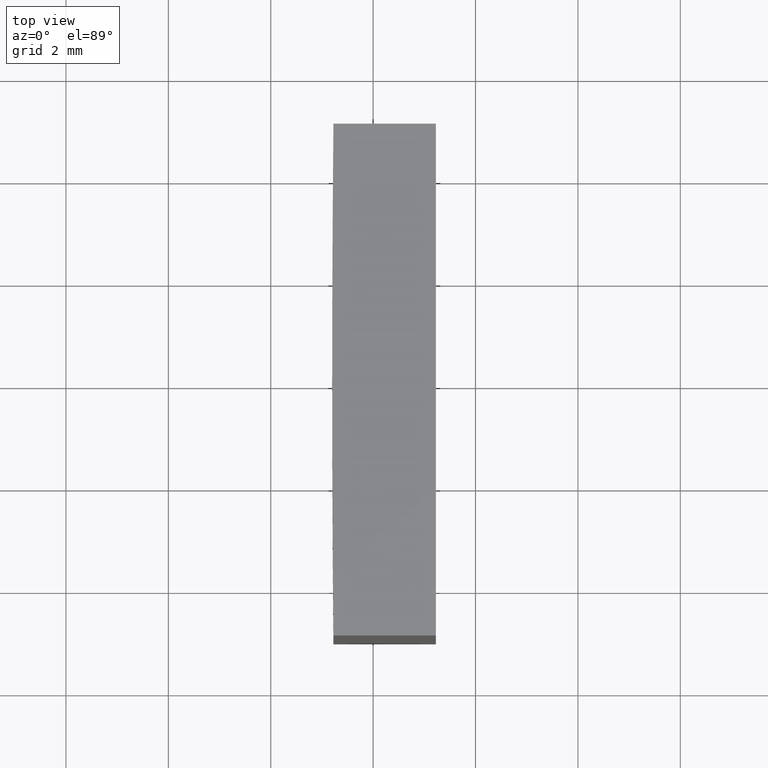
[diagram: clean part render]
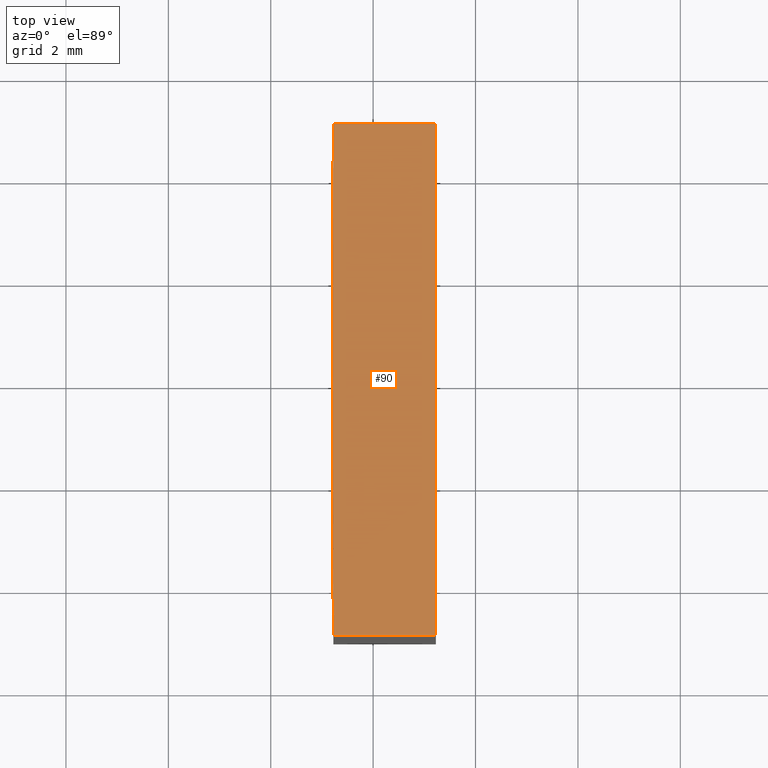
[diagram: same view with one face highlighted and labeled with its STEP entity id]
A machine part, top view. The second image highlights one B-rep face of the part: STEP entity #90.
In plain terms, the highlighted planar face has unit normal (0, 0, 1).
Its self-contained STEP definition (entity closure, byte-faithful):
#2 = VECTOR ( 'NONE', #32, 1000.000000000000000 ) ;
#11 = LINE ( 'NONE', #14, #2 ) ;
#13 = FACE_OUTER_BOUND ( 'NONE', #214, .T. ) ;
#14 = CARTESIAN_POINT ( 'NONE',  ( -516.7758121274639507, 5.000000000000004441, 10.00000000000000000 ) ) ;
#24 = ORIENTED_EDGE ( 'NONE', *, *, #104, .T. ) ;
#26 = VECTOR ( 'NONE', #216, 1000.000000000000000 ) ;
#29 = LINE ( 'NONE', #256, #26 ) ;
#31 = ORIENTED_EDGE ( 'NONE', *, *, #36, .T. ) ;
#32 = DIRECTION ( 'NONE',  ( -1.000000000000000000, 1.734723475976805517E-15, -0.000000000000000000 ) ) ;
#34 = ORIENTED_EDGE ( 'NONE', *, *, #211, .T. ) ;
#35 = DIRECTION ( 'NONE',  ( 1.000000000000000000, 1.734723475976805517E-15, 0.000000000000000000 ) ) ;
#36 = EDGE_CURVE ( 'NONE', #66, #164, #144, .T. ) ;
#37 = DIRECTION ( 'NONE',  ( 0.000000000000000000, 0.000000000000000000, 1.000000000000000000 ) ) ;
#41 = EDGE_CURVE ( 'NONE', #221, #252, #11, .T. ) ;
#51 = AXIS2_PLACEMENT_3D ( 'NONE', #176, #53, #197 ) ;
#53 = DIRECTION ( 'NONE',  ( 0.000000000000000000, 0.000000000000000000, 1.000000000000000000 ) ) ;
#66 = VERTEX_POINT ( 'NONE', #122 ) ;
#71 = CIRCLE ( 'NONE', #112, 516.7999999999999545 ) ;
#77 = CARTESIAN_POINT ( 'NONE',  ( 0.000000000000000000, 0.000000000000000000, 10.00000000000000000 ) ) ;
#89 = ORIENTED_EDGE ( 'NONE', *, *, #41, .T. ) ;
#90 = ADVANCED_FACE ( 'NONE', ( #13 ), #142, .T. ) ;
#96 = DIRECTION ( 'NONE',  ( 0.000000000000000000, 0.000000000000000000, 1.000000000000000000 ) ) ;
#100 = CARTESIAN_POINT ( 'NONE',  ( 0.000000000000000000, 0.000000000000000000, 10.00000000000000000 ) ) ;
#102 = CARTESIAN_POINT ( 'NONE',  ( -514.7758121274639507, 5.000000000000000888, 10.00000000000000000 ) ) ;
#104 = EDGE_CURVE ( 'NONE', #190, #221, #29, .T. ) ;
#112 = AXIS2_PLACEMENT_3D ( 'NONE', #77, #37, #130 ) ;
#114 = ORIENTED_EDGE ( 'NONE', *, *, #262, .T. ) ;
#122 = CARTESIAN_POINT ( 'NONE',  ( -516.7999999999999545, 0.000000000000000000, 10.00000000000000000 ) ) ;
#127 = VECTOR ( 'NONE', #35, 1000.000000000000000 ) ;
#130 = DIRECTION ( 'NONE',  ( 1.000000000000000000, 0.000000000000000000, 0.000000000000000000 ) ) ;
#142 = PLANE ( 'NONE',  #51 ) ;
#144 = CIRCLE ( 'NONE', #270, 516.7999999999999545 ) ;
#164 = VERTEX_POINT ( 'NONE', #169 ) ;
#169 = CARTESIAN_POINT ( 'NONE',  ( -516.7758121274639507, -5.000000000000004441, 10.00000000000000000 ) ) ;
#176 = CARTESIAN_POINT ( 'NONE',  ( 0.000000000000000000, 0.000000000000000000, 10.00000000000000000 ) ) ;
#183 = LINE ( 'NONE', #272, #127 ) ;
#187 = CARTESIAN_POINT ( 'NONE',  ( -516.7758121274639507, 5.000000000000004441, 10.00000000000000000 ) ) ;
#190 = VERTEX_POINT ( 'NONE', #229 ) ;
#197 = DIRECTION ( 'NONE',  ( 1.000000000000000000, 0.000000000000000000, -0.000000000000000000 ) ) ;
#203 = DIRECTION ( 'NONE',  ( 1.000000000000000000, 0.000000000000000000, 0.000000000000000000 ) ) ;
#211 = EDGE_CURVE ( 'NONE', #164, #190, #183, .T. ) ;
#214 = EDGE_LOOP ( 'NONE', ( #114, #31, #34, #24, #89 ) ) ;
#216 = DIRECTION ( 'NONE',  ( -0.000000000000000000, 1.000000000000000000, -0.000000000000000000 ) ) ;
#221 = VERTEX_POINT ( 'NONE', #102 ) ;
#229 = CARTESIAN_POINT ( 'NONE',  ( -514.7758121274639507, -5.000000000000000888, 10.00000000000000000 ) ) ;
#252 = VERTEX_POINT ( 'NONE', #187 ) ;
#256 = CARTESIAN_POINT ( 'NONE',  ( -514.7758121274639507, 5.000000000000000888, 10.00000000000000000 ) ) ;
#262 = EDGE_CURVE ( 'NONE', #252, #66, #71, .T. ) ;
#270 = AXIS2_PLACEMENT_3D ( 'NONE', #100, #96, #203 ) ;
#272 = CARTESIAN_POINT ( 'NONE',  ( -516.7758121274639507, -5.000000000000004441, 10.00000000000000000 ) ) ;